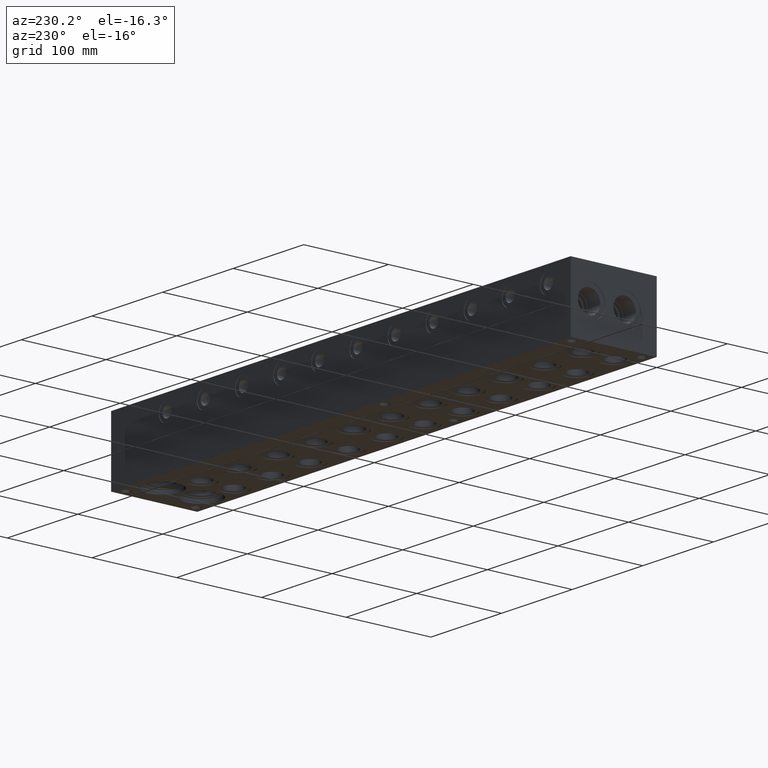
[diagram: clean part render]
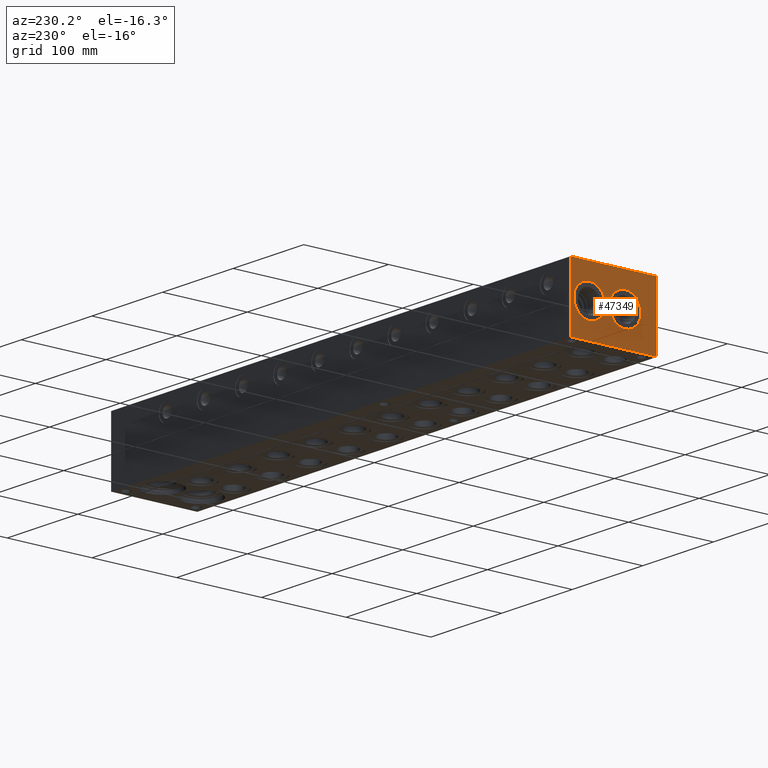
[diagram: same view with one face highlighted and labeled with its STEP entity id]
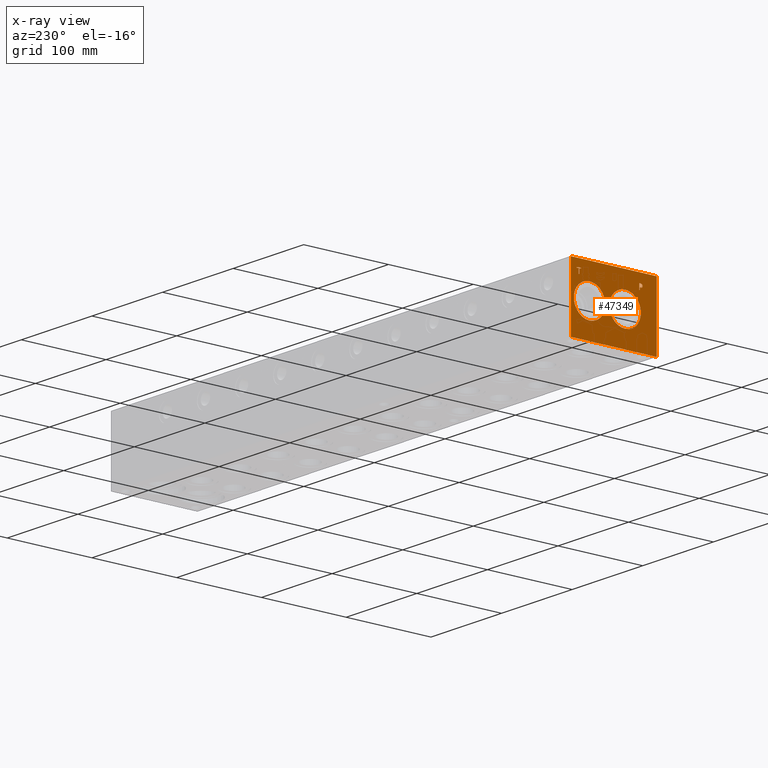
[diagram: x-ray of the same camera — body ghosted, the highlighted face saturated]
A machine part, auxiliary view. The second image highlights one B-rep face of the part: STEP entity #47349.
The next image is the same camera in x-ray: the body ghosted, the highlighted face saturated — about 0% of this face is hidden behind the body in this view.
In plain terms, the highlighted planar face has unit normal (-1, 0, 0).
Its self-contained STEP definition (entity closure, byte-faithful):
#664=CIRCLE('',#49719,18.5547);
#665=CIRCLE('',#49720,18.5547);
#666=CIRCLE('',#49721,18.5547);
#667=CIRCLE('',#49722,18.5547);
#2065=FACE_BOUND('',#8212,.T.);
#2066=FACE_BOUND('',#8213,.T.);
#2067=FACE_BOUND('',#8214,.T.);
#2068=FACE_BOUND('',#8215,.T.);
#3168=B_SPLINE_CURVE_WITH_KNOTS('',2,(#72125,#72126,#72127,#72128),
 .UNSPECIFIED.,.F.,.F.,(3,1,3),(0.,1.,2.),.UNSPECIFIED.);
#3170=B_SPLINE_CURVE_WITH_KNOTS('',2,(#72146,#72147,#72148,#72149),
 .UNSPECIFIED.,.F.,.F.,(3,1,3),(0.,1.,2.),.UNSPECIFIED.);
#3172=B_SPLINE_CURVE_WITH_KNOTS('',2,(#72195,#72196,#72197,#72198),
 .UNSPECIFIED.,.F.,.F.,(3,1,3),(0.,1.,2.),.UNSPECIFIED.);
#3174=B_SPLINE_CURVE_WITH_KNOTS('',2,(#72213,#72214,#72215,#72216),
 .UNSPECIFIED.,.F.,.F.,(3,1,3),(0.,1.,2.),.UNSPECIFIED.);
#5511=FACE_OUTER_BOUND('',#8211,.T.);
#8211=EDGE_LOOP('',(#34817,#34818,#34819,#34820));
#8212=EDGE_LOOP('',(#34821,#34822));
#8213=EDGE_LOOP('',(#34823,#34824));
#8214=EDGE_LOOP('',(#34825,#34826,#34827,#34828,#34829,#34830,#34831,#34832));
#8215=EDGE_LOOP('',(#34833,#34834,#34835,#34836,#34837,#34838,#34839,#34840,
#34841));
#10581=LINE('',#64603,#14577);
#11148=LINE('',#67268,#15144);
#12072=LINE('',#72158,#16068);
#12075=LINE('',#72164,#16071);
#12078=LINE('',#72170,#16074);
#12081=LINE('',#72176,#16077);
#12084=LINE('',#72182,#16080);
#12088=LINE('',#72224,#16084);
#12089=LINE('',#72225,#16085);
#12090=LINE('',#72236,#16086);
#12091=LINE('',#72238,#16087);
#12092=LINE('',#72240,#16088);
#12093=LINE('',#72242,#16089);
#12094=LINE('',#72244,#16090);
#12095=LINE('',#72246,#16091);
#12096=LINE('',#72248,#16092);
#12097=LINE('',#72249,#16093);
#14577=VECTOR('',#52717,10.);
#15144=VECTOR('',#53652,10.);
#16068=VECTOR('',#55322,10.);
#16071=VECTOR('',#55327,10.);
#16074=VECTOR('',#55332,10.);
#16077=VECTOR('',#55337,10.);
#16080=VECTOR('',#55342,10.);
#16084=VECTOR('',#55350,10.);
#16085=VECTOR('',#55351,10.);
#16086=VECTOR('',#55360,10.);
#16087=VECTOR('',#55361,10.);
#16088=VECTOR('',#55362,10.);
#16089=VECTOR('',#55363,10.);
#16090=VECTOR('',#55364,10.);
#16091=VECTOR('',#55365,10.);
#16092=VECTOR('',#55366,10.);
#16093=VECTOR('',#55367,10.);
#18572=VERTEX_POINT('',#64596);
#18575=VERTEX_POINT('',#64601);
#19281=VERTEX_POINT('',#67267);
#20180=VERTEX_POINT('',#72123);
#20181=VERTEX_POINT('',#72124);
#20184=VERTEX_POINT('',#72145);
#20186=VERTEX_POINT('',#72157);
#20188=VERTEX_POINT('',#72163);
#20190=VERTEX_POINT('',#72169);
#20192=VERTEX_POINT('',#72175);
#20194=VERTEX_POINT('',#72181);
#20196=VERTEX_POINT('',#72194);
#20198=VERTEX_POINT('',#72223);
#20199=VERTEX_POINT('',#72226);
#20200=VERTEX_POINT('',#72227);
#20201=VERTEX_POINT('',#72230);
#20202=VERTEX_POINT('',#72231);
#20203=VERTEX_POINT('',#72234);
#20204=VERTEX_POINT('',#72235);
#20205=VERTEX_POINT('',#72237);
#20206=VERTEX_POINT('',#72239);
#20207=VERTEX_POINT('',#72241);
#20208=VERTEX_POINT('',#72243);
#20209=VERTEX_POINT('',#72245);
#20210=VERTEX_POINT('',#72247);
#23536=EDGE_CURVE('',#18572,#18575,#10581,.T.);
#24397=EDGE_CURVE('',#19281,#18572,#11148,.T.);
#25714=EDGE_CURVE('',#20180,#20181,#3168,.T.);
#25718=EDGE_CURVE('',#20184,#20180,#3170,.T.);
#25721=EDGE_CURVE('',#20186,#20184,#12072,.T.);
#25724=EDGE_CURVE('',#20188,#20186,#12075,.T.);
#25727=EDGE_CURVE('',#20190,#20188,#12078,.T.);
#25730=EDGE_CURVE('',#20192,#20190,#12081,.T.);
#25733=EDGE_CURVE('',#20194,#20192,#12084,.T.);
#25736=EDGE_CURVE('',#20196,#20194,#3172,.T.);
#25739=EDGE_CURVE('',#20181,#20196,#3174,.T.);
#25741=EDGE_CURVE('',#20198,#18575,#12088,.T.);
#25742=EDGE_CURVE('',#19281,#20198,#12089,.T.);
#25743=EDGE_CURVE('',#20199,#20200,#664,.T.);
#25744=EDGE_CURVE('',#20200,#20199,#665,.T.);
#25745=EDGE_CURVE('',#20201,#20202,#666,.T.);
#25746=EDGE_CURVE('',#20202,#20201,#667,.T.);
#25747=EDGE_CURVE('',#20203,#20204,#12090,.T.);
#25748=EDGE_CURVE('',#20204,#20205,#12091,.T.);
#25749=EDGE_CURVE('',#20205,#20206,#12092,.T.);
#25750=EDGE_CURVE('',#20206,#20207,#12093,.T.);
#25751=EDGE_CURVE('',#20207,#20208,#12094,.T.);
#25752=EDGE_CURVE('',#20208,#20209,#12095,.T.);
#25753=EDGE_CURVE('',#20209,#20210,#12096,.T.);
#25754=EDGE_CURVE('',#20210,#20203,#12097,.T.);
#34817=ORIENTED_EDGE('',*,*,#24397,.T.);
#34818=ORIENTED_EDGE('',*,*,#23536,.T.);
#34819=ORIENTED_EDGE('',*,*,#25741,.F.);
#34820=ORIENTED_EDGE('',*,*,#25742,.F.);
#34821=ORIENTED_EDGE('',*,*,#25743,.T.);
#34822=ORIENTED_EDGE('',*,*,#25744,.T.);
#34823=ORIENTED_EDGE('',*,*,#25745,.T.);
#34824=ORIENTED_EDGE('',*,*,#25746,.T.);
#34825=ORIENTED_EDGE('',*,*,#25747,.T.);
#34826=ORIENTED_EDGE('',*,*,#25748,.T.);
#34827=ORIENTED_EDGE('',*,*,#25749,.T.);
#34828=ORIENTED_EDGE('',*,*,#25750,.T.);
#34829=ORIENTED_EDGE('',*,*,#25751,.T.);
#34830=ORIENTED_EDGE('',*,*,#25752,.T.);
#34831=ORIENTED_EDGE('',*,*,#25753,.T.);
#34832=ORIENTED_EDGE('',*,*,#25754,.T.);
#34833=ORIENTED_EDGE('',*,*,#25714,.T.);
#34834=ORIENTED_EDGE('',*,*,#25739,.T.);
#34835=ORIENTED_EDGE('',*,*,#25736,.T.);
#34836=ORIENTED_EDGE('',*,*,#25733,.T.);
#34837=ORIENTED_EDGE('',*,*,#25730,.T.);
#34838=ORIENTED_EDGE('',*,*,#25727,.T.);
#34839=ORIENTED_EDGE('',*,*,#25724,.T.);
#34840=ORIENTED_EDGE('',*,*,#25721,.T.);
#34841=ORIENTED_EDGE('',*,*,#25718,.T.);
#44114=PLANE('',#49718);
#47349=ADVANCED_FACE('',(#5511,#2065,#2066,#2067,#2068),#44114,.T.);
#49718=AXIS2_PLACEMENT_3D('',#72222,#55348,#55349);
#49719=AXIS2_PLACEMENT_3D('',#72228,#55352,#55353);
#49720=AXIS2_PLACEMENT_3D('',#72229,#55354,#55355);
#49721=AXIS2_PLACEMENT_3D('',#72232,#55356,#55357);
#49722=AXIS2_PLACEMENT_3D('',#72233,#55358,#55359);
#52717=DIRECTION('',(0.,0.,1.));
#53652=DIRECTION('',(0.,-1.,0.));
#55322=DIRECTION('',(0.,-1.,-5.56775304226774E-15));
#55327=DIRECTION('',(0.,-3.49676548440641E-15,1.));
#55332=DIRECTION('',(0.,1.,0.));
#55337=DIRECTION('',(0.,3.75218139805001E-15,-1.));
#55342=DIRECTION('',(0.,1.,0.));
#55348=DIRECTION('center_axis',(-1.,0.,0.));
#55349=DIRECTION('ref_axis',(0.,-1.,0.));
#55350=DIRECTION('',(0.,-1.,0.));
#55351=DIRECTION('',(0.,0.,1.));
#55352=DIRECTION('center_axis',(1.,0.,0.));
#55353=DIRECTION('ref_axis',(0.,0.,1.));
#55354=DIRECTION('center_axis',(1.,0.,0.));
#55355=DIRECTION('ref_axis',(0.,0.,1.));
#55356=DIRECTION('center_axis',(1.,0.,0.));
#55357=DIRECTION('ref_axis',(0.,0.,1.));
#55358=DIRECTION('center_axis',(1.,0.,0.));
#55359=DIRECTION('ref_axis',(0.,0.,1.));
#55360=DIRECTION('',(0.,1.,0.));
#55361=DIRECTION('',(0.,-3.17280044688052E-15,1.));
#55362=DIRECTION('',(0.,1.,4.16909044227778E-15));
#55363=DIRECTION('',(0.,0.,1.));
#55364=DIRECTION('',(0.,-1.,-1.73992282570867E-15));
#55365=DIRECTION('',(0.,0.,-1.));
#55366=DIRECTION('',(0.,1.,0.));
#55367=DIRECTION('',(0.,3.17280044688052E-15,-1.));
#64596=CARTESIAN_POINT('',(0.,0.,0.));
#64601=CARTESIAN_POINT('',(0.,0.,76.2));
#64603=CARTESIAN_POINT('',(0.,0.,0.));
#67267=CARTESIAN_POINT('',(0.,101.6,0.));
#67268=CARTESIAN_POINT('',(0.,101.6,0.));
#72123=CARTESIAN_POINT('',(0.,17.5306827976406,65.4850181439707));
#72124=CARTESIAN_POINT('',(0.,16.774240345468,63.9669873726039));
#72125=CARTESIAN_POINT('Ctrl Pts',(0.,17.5306827976406,65.4850181439707));
#72126=CARTESIAN_POINT('Ctrl Pts',(0.,17.1756179731514,65.2431623939564));
#72127=CARTESIAN_POINT('Ctrl Pts',(0.,16.774240345468,64.4970116758269));
#72128=CARTESIAN_POINT('Ctrl Pts',(0.,16.774240345468,63.9669873726039));
#72145=CARTESIAN_POINT('',(0.,19.1927978456117,65.8812499046326));
#72146=CARTESIAN_POINT('Ctrl Pts',(0.,19.1927978456117,65.8812499046326));
#72147=CARTESIAN_POINT('Ctrl Pts',(0.,18.6267524732376,65.8812499046326));
#72148=CARTESIAN_POINT('Ctrl Pts',(0.,17.834288951914,65.6959986918556));
#72149=CARTESIAN_POINT('Ctrl Pts',(0.,17.5306827976406,65.4850181439707));
#72157=CARTESIAN_POINT('',(0.,20.7880166223022,65.8812499046326));
#72158=CARTESIAN_POINT('',(0.,61.1940083111509,65.8812499046328));
#72163=CARTESIAN_POINT('',(0.,20.7880166223022,59.53125));
#72164=CARTESIAN_POINT('',(0.,20.7880166223023,29.7656249999999));
#72169=CARTESIAN_POINT('',(0.,19.9440944307627,59.53125));
#72170=CARTESIAN_POINT('',(0.,60.7720472153814,59.53125));
#72175=CARTESIAN_POINT('',(0.,19.9440944307627,61.8983488299279));
#72176=CARTESIAN_POINT('',(0.,19.9440944307628,30.9491744149638));
#72181=CARTESIAN_POINT('',(0.,19.2288189147628,61.8983488299279));
#72182=CARTESIAN_POINT('',(0.,60.4144094573814,61.8983488299279));
#72194=CARTESIAN_POINT('',(0.,17.3299939837989,62.5570198086904));
#72195=CARTESIAN_POINT('Ctrl Pts',(0.,17.3299939837989,62.5570198086904));
#72196=CARTESIAN_POINT('Ctrl Pts',(0.,17.6593294731802,62.2328301863307));
#72197=CARTESIAN_POINT('Ctrl Pts',(0.,18.5495644679139,61.8983488299279));
#72198=CARTESIAN_POINT('Ctrl Pts',(0.,19.2288189147628,61.8983488299279));
#72213=CARTESIAN_POINT('Ctrl Pts',(0.,16.774240345468,63.9669873726039));
#72214=CARTESIAN_POINT('Ctrl Pts',(0.,16.774240345468,63.5553180108774));
#72215=CARTESIAN_POINT('Ctrl Pts',(0.,17.0675547656982,62.8143131597695));
#72216=CARTESIAN_POINT('Ctrl Pts',(0.,17.3299939837989,62.5570198086904));
#72222=CARTESIAN_POINT('Origin',(0.,101.6,0.));
#72223=CARTESIAN_POINT('',(0.,101.6,76.2));
#72224=CARTESIAN_POINT('',(0.,101.6,76.2));
#72225=CARTESIAN_POINT('',(0.,101.6,0.));
#72226=CARTESIAN_POINT('',(0.,79.375,56.6547));
#72227=CARTESIAN_POINT('',(0.,79.375,19.5453));
#72228=CARTESIAN_POINT('Origin',(0.,79.375,38.1));
#72229=CARTESIAN_POINT('Origin',(0.,79.375,38.1));
#72230=CARTESIAN_POINT('',(0.,37.3126,56.6547));
#72231=CARTESIAN_POINT('',(0.,37.3126,19.5453));
#72232=CARTESIAN_POINT('Origin',(0.,37.3126,38.1));
#72233=CARTESIAN_POINT('Origin',(0.,37.3126,38.1));
#72234=CARTESIAN_POINT('',(0.,91.487084728547,61.11875));
#72235=CARTESIAN_POINT('',(0.,92.3310069200865,61.11875));
#72236=CARTESIAN_POINT('',(0.,96.5435423642735,61.11875));
#72237=CARTESIAN_POINT('',(0.,92.3310069200865,66.7174533194815));
#72238=CARTESIAN_POINT('',(0.,92.3310069200866,30.559375));
#72239=CARTESIAN_POINT('',(0.,94.4613958670215,66.7174533194816));
#72240=CARTESIAN_POINT('',(0.,96.9655034600431,66.7174533194816));
#72241=CARTESIAN_POINT('',(0.,94.4613958670215,67.4687499046326));
#72242=CARTESIAN_POINT('',(0.,94.4613958670216,33.3587266597408));
#72243=CARTESIAN_POINT('',(0.,89.3566957816119,67.4687499046326));
#72244=CARTESIAN_POINT('',(0.,98.0306979335107,67.4687499046326));
#72245=CARTESIAN_POINT('',(0.,89.3566957816119,66.7174533194815));
#72246=CARTESIAN_POINT('',(0.,89.3566957816119,33.7343749523163));
#72247=CARTESIAN_POINT('',(0.,91.487084728547,66.7174533194815));
#72248=CARTESIAN_POINT('',(0.,95.4783478908059,66.7174533194815));
#72249=CARTESIAN_POINT('',(0.,91.4870847285471,33.3587266597408));